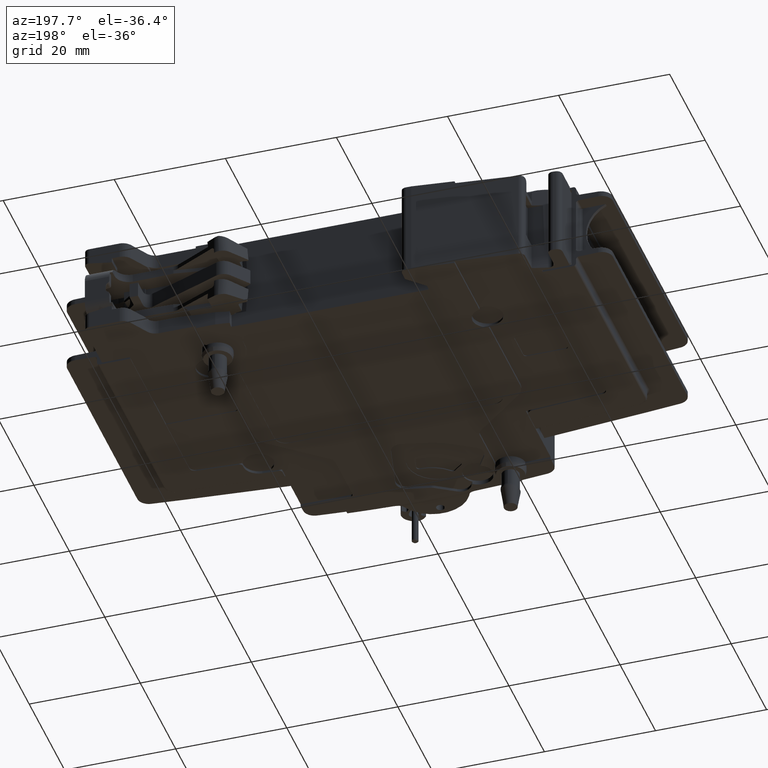
[diagram: clean part render]
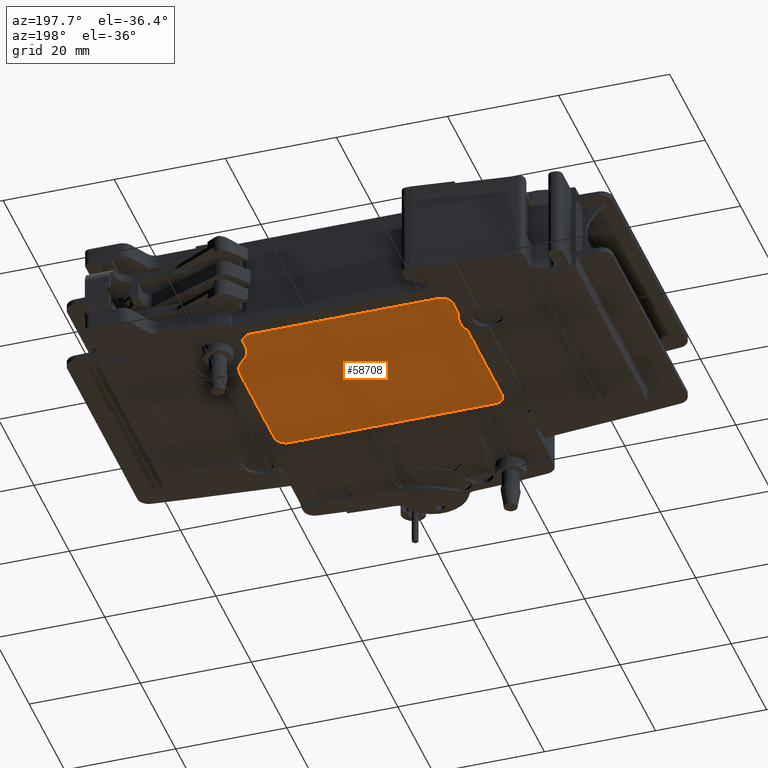
[diagram: same view with one face highlighted and labeled with its STEP entity id]
A machine part, auxiliary view. The second image highlights one B-rep face of the part: STEP entity #58708.
In plain terms, the highlighted planar face has unit normal (0, 0, -1).
Its self-contained STEP definition (entity closure, byte-faithful):
#21971=CARTESIAN_POINT('',(-1.818556198625E1,-3.3E1,-8.625E0));
#21972=DIRECTION('',(0.E0,0.E0,-1.E0));
#21973=DIRECTION('',(0.E0,-1.E0,0.E0));
#21974=AXIS2_PLACEMENT_3D('',#21971,#21972,#21973);
#21976=DIRECTION('',(-1.E0,0.E0,0.E0));
#21977=VECTOR('',#21976,3.7E1);
#21978=CARTESIAN_POINT('',(1.881443801375E1,-3.5E1,-8.625E0));
#21979=LINE('',#21978,#21977);
#21980=CARTESIAN_POINT('',(1.881443801375E1,-3.3E1,-8.625E0));
#21981=DIRECTION('',(0.E0,0.E0,-1.E0));
#21982=DIRECTION('',(1.E0,0.E0,0.E0));
#21983=AXIS2_PLACEMENT_3D('',#21980,#21981,#21982);
#21985=DIRECTION('',(0.E0,-1.E0,0.E0));
#21986=VECTOR('',#21985,1.936338377163E1);
#21987=CARTESIAN_POINT('',(2.081443801375E1,-1.363661622837E1,-8.625E0));
#21988=LINE('',#21987,#21986);
#21989=CARTESIAN_POINT('',(1.581443801375E1,-1.363661622837E1,-8.625E0));
#21990=DIRECTION('',(0.E0,0.E0,-1.E0));
#21991=DIRECTION('',(6.685561986247E-1,7.436616228369E-1,0.E0));
#21992=AXIS2_PLACEMENT_3D('',#21989,#21990,#21991);
#21994=CARTESIAN_POINT('',(2.25E1,-6.2E0,-8.625E0));
#21995=DIRECTION('',(0.E0,0.E0,1.E0));
#21996=DIRECTION('',(-1.E0,0.E0,0.E0));
#21997=AXIS2_PLACEMENT_3D('',#21994,#21995,#21996);
#21999=DIRECTION('',(0.E0,-1.E0,0.E0));
#22000=VECTOR('',#21999,1.2E0);
#22001=CARTESIAN_POINT('',(1.75E1,-5.E0,-8.625E0));
#22002=LINE('',#22001,#22000);
#22003=CARTESIAN_POINT('',(1.55E1,-5.E0,-8.625E0));
#22004=DIRECTION('',(0.E0,0.E0,-1.E0));
#22005=DIRECTION('',(0.E0,1.E0,0.E0));
#22006=AXIS2_PLACEMENT_3D('',#22003,#22004,#22005);
#22008=DIRECTION('',(1.E0,0.E0,0.E0));
#22009=VECTOR('',#22008,3.368556198625E1);
#22010=CARTESIAN_POINT('',(-1.818556198625E1,-3.E0,-8.625E0));
#22011=LINE('',#22010,#22009);
#22012=CARTESIAN_POINT('',(-1.818556198625E1,-5.E0,-8.625E0));
#22013=DIRECTION('',(0.E0,0.E0,-1.E0));
#22014=DIRECTION('',(-1.E0,0.E0,0.E0));
#22015=AXIS2_PLACEMENT_3D('',#22012,#22013,#22014);
#22017=DIRECTION('',(0.E0,1.E0,0.E0));
#22018=VECTOR('',#22017,3.097325390324E0);
#22019=CARTESIAN_POINT('',(-2.018556198625E1,-8.097325390324E0,-8.625E0));
#22020=LINE('',#22019,#22018);
#22021=CARTESIAN_POINT('',(-1.818556198625E1,-8.097325390324E0,-8.625E0));
#22022=DIRECTION('',(0.E0,0.E0,-1.E0));
#22023=DIRECTION('',(-9.163482876789E-1,-4.003820870967E-1,0.E0));
#22024=AXIS2_PLACEMENT_3D('',#22021,#22022,#22023);
#22026=CARTESIAN_POINT('',(-2.46E1,-1.09E1,-8.625E0));
#22027=DIRECTION('',(0.E0,0.E0,1.E0));
#22028=DIRECTION('',(9.163482876790E-1,-4.003820870966E-1,0.E0));
#22029=AXIS2_PLACEMENT_3D('',#22026,#22027,#22028);
#22031=CARTESIAN_POINT('',(-1.818556198625E1,-1.370267460968E1,-8.625E0));
#22032=DIRECTION('',(0.E0,0.E0,-1.E0));
#22033=DIRECTION('',(-1.E0,0.E0,0.E0));
#22034=AXIS2_PLACEMENT_3D('',#22031,#22032,#22033);
#22036=DIRECTION('',(0.E0,1.E0,0.E0));
#22037=VECTOR('',#22036,1.929732539032E1);
#22038=CARTESIAN_POINT('',(-2.018556198625E1,-3.3E1,-8.625E0));
#22039=LINE('',#22038,#22037);
#23151=CARTESIAN_POINT('',(-1.818556198625E1,-3.5E1,-8.625E0));
#23152=CARTESIAN_POINT('',(-2.018556198625E1,-3.3E1,-8.625E0));
#23153=VERTEX_POINT('',#23151);
#23154=VERTEX_POINT('',#23152);
#23155=CARTESIAN_POINT('',(-2.018556198625E1,-8.097325390324E0,-8.625E0));
#23156=CARTESIAN_POINT('',(-2.018556198625E1,-5.E0,-8.625E0));
#23157=VERTEX_POINT('',#23155);
#23158=VERTEX_POINT('',#23156);
#23159=CARTESIAN_POINT('',(-1.818556198625E1,-3.E0,-8.625E0));
#23160=VERTEX_POINT('',#23159);
#23161=CARTESIAN_POINT('',(1.55E1,-3.E0,-8.625E0));
#23162=VERTEX_POINT('',#23161);
#23163=CARTESIAN_POINT('',(1.75E1,-6.2E0,-8.625E0));
#23164=CARTESIAN_POINT('',(1.915721900688E1,-9.918308114185E0,-8.625E0));
#23165=VERTEX_POINT('',#23163);
#23166=VERTEX_POINT('',#23164);
#23167=CARTESIAN_POINT('',(2.081443801375E1,-1.363661622837E1,-8.625E0));
#23168=CARTESIAN_POINT('',(2.081443801375E1,-3.3E1,-8.625E0));
#23169=VERTEX_POINT('',#23167);
#23170=VERTEX_POINT('',#23168);
#23171=CARTESIAN_POINT('',(1.881443801375E1,-3.5E1,-8.625E0));
#23172=VERTEX_POINT('',#23171);
#23195=CARTESIAN_POINT('',(-2.018556198625E1,-1.370267460968E1,-8.625E0));
#23196=VERTEX_POINT('',#23195);
#23197=CARTESIAN_POINT('',(-2.001825856161E1,-1.290191043548E1,-8.625E0));
#23198=VERTEX_POINT('',#23197);
#23199=CARTESIAN_POINT('',(-2.001825856161E1,-8.898089564517E0,-8.625E0));
#23200=VERTEX_POINT('',#23199);
#23201=CARTESIAN_POINT('',(1.75E1,-5.E0,-8.625E0));
#23202=VERTEX_POINT('',#23201);
#58686=CARTESIAN_POINT('',(2.75E1,0.E0,-8.625E0));
#58687=DIRECTION('',(0.E0,0.E0,-1.E0));
#58688=DIRECTION('',(1.E0,0.E0,0.E0));
#58689=AXIS2_PLACEMENT_3D('',#58686,#58687,#58688);
#58690=PLANE('',#58689);
#58691=ORIENTED_EDGE('',*,*,#58484,.F.);
#58692=ORIENTED_EDGE('',*,*,#58499,.F.);
#58693=ORIENTED_EDGE('',*,*,#58513,.F.);
#58694=ORIENTED_EDGE('',*,*,#58527,.F.);
#58695=ORIENTED_EDGE('',*,*,#58541,.F.);
#58696=ORIENTED_EDGE('',*,*,#58555,.F.);
#58697=ORIENTED_EDGE('',*,*,#58569,.F.);
#58698=ORIENTED_EDGE('',*,*,#58583,.F.);
#58699=ORIENTED_EDGE('',*,*,#58597,.F.);
#58700=ORIENTED_EDGE('',*,*,#58611,.F.);
#58701=ORIENTED_EDGE('',*,*,#58625,.F.);
#58702=ORIENTED_EDGE('',*,*,#58639,.F.);
#58703=ORIENTED_EDGE('',*,*,#58653,.F.);
#58704=ORIENTED_EDGE('',*,*,#58667,.F.);
#58705=ORIENTED_EDGE('',*,*,#58680,.F.);
#58706=EDGE_LOOP('',(#58691,#58692,#58693,#58694,#58695,#58696,#58697,#58698,
#58699,#58700,#58701,#58702,#58703,#58704,#58705));
#58707=FACE_OUTER_BOUND('',#58706,.F.);
#21975=CIRCLE('',#21974,2.E0);
#21984=CIRCLE('',#21983,2.E0);
#21993=CIRCLE('',#21992,5.E0);
#21998=CIRCLE('',#21997,5.E0);
#22007=CIRCLE('',#22006,2.E0);
#22016=CIRCLE('',#22015,2.E0);
#22025=CIRCLE('',#22024,2.E0);
#22030=CIRCLE('',#22029,5.E0);
#22035=CIRCLE('',#22034,2.E0);
#58484=EDGE_CURVE('',#23153,#23154,#21975,.T.);
#58499=EDGE_CURVE('',#23172,#23153,#21979,.T.);
#58513=EDGE_CURVE('',#23170,#23172,#21984,.T.);
#58527=EDGE_CURVE('',#23169,#23170,#21988,.T.);
#58541=EDGE_CURVE('',#23166,#23169,#21993,.T.);
#58555=EDGE_CURVE('',#23165,#23166,#21998,.T.);
#58569=EDGE_CURVE('',#23202,#23165,#22002,.T.);
#58583=EDGE_CURVE('',#23162,#23202,#22007,.T.);
#58597=EDGE_CURVE('',#23160,#23162,#22011,.T.);
#58611=EDGE_CURVE('',#23158,#23160,#22016,.T.);
#58625=EDGE_CURVE('',#23157,#23158,#22020,.T.);
#58639=EDGE_CURVE('',#23200,#23157,#22025,.T.);
#58653=EDGE_CURVE('',#23198,#23200,#22030,.T.);
#58667=EDGE_CURVE('',#23196,#23198,#22035,.T.);
#58680=EDGE_CURVE('',#23154,#23196,#22039,.T.);
#58708=ADVANCED_FACE('',(#58707),#58690,.T.);